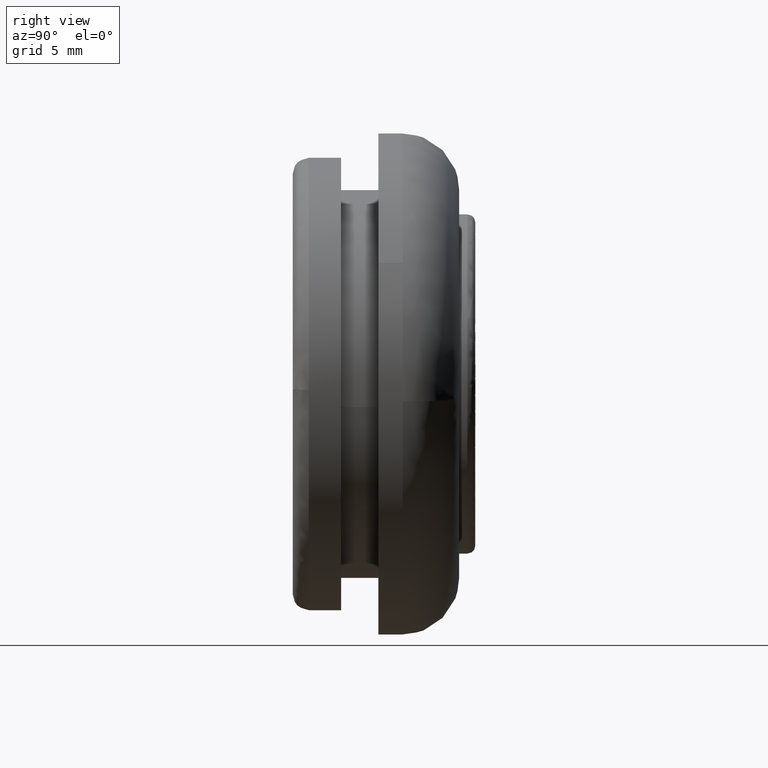
[diagram: clean part render]
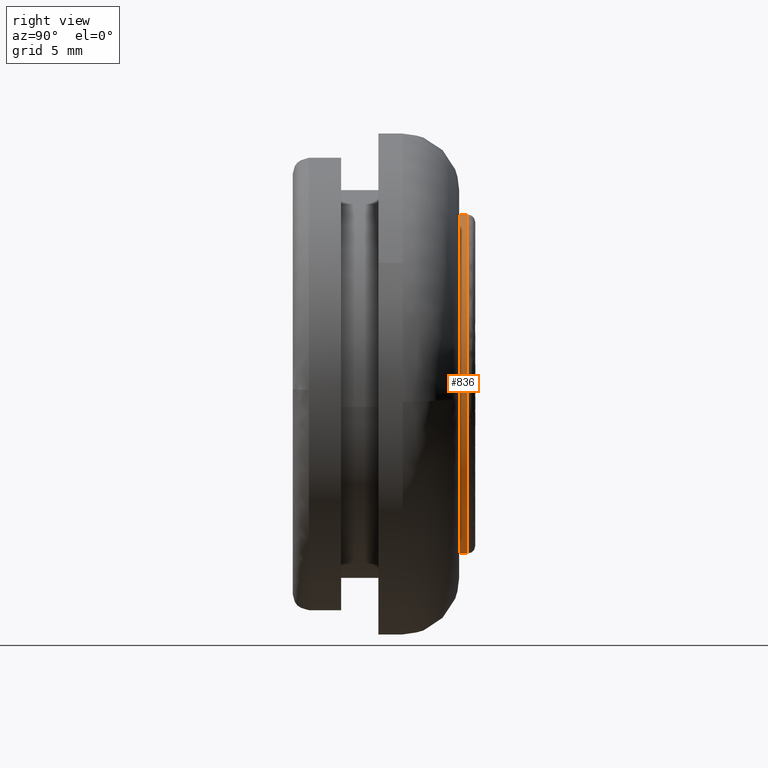
[diagram: same view with one face highlighted and labeled with its STEP entity id]
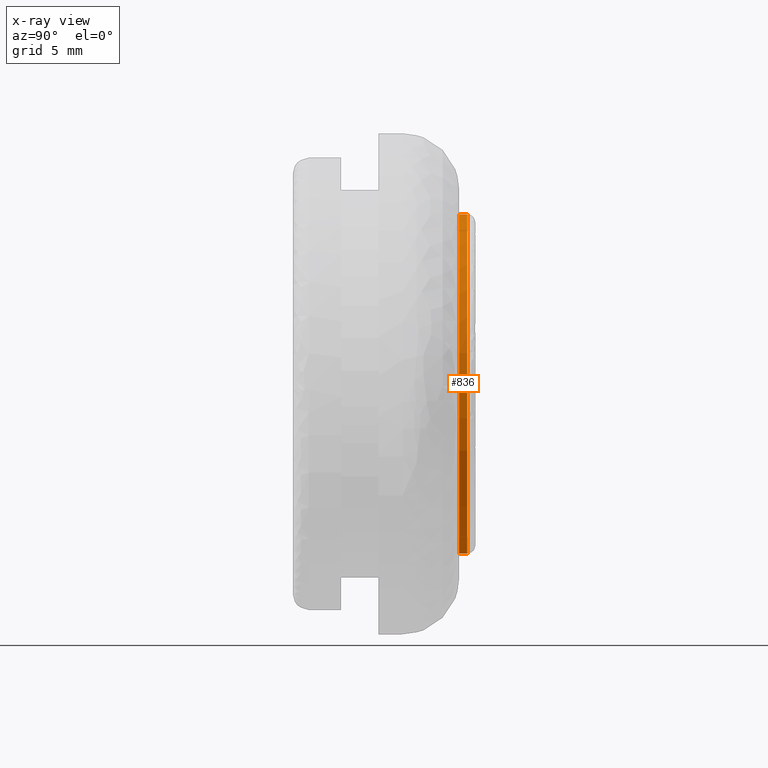
[diagram: x-ray of the same camera — body ghosted, the highlighted face saturated]
A machine part, right view. The second image highlights one B-rep face of the part: STEP entity #836.
The next image is the same camera in x-ray: the body ghosted, the highlighted face saturated — about 0% of this face is hidden behind the body in this view.
In plain terms, the highlighted face is a freeform B-spline surface patch.
Its self-contained STEP definition (entity closure, byte-faithful):
#666=CARTESIAN_POINT('',(-6.915020529185086,10.812500000185896,-7.901423357911457));
#667=CARTESIAN_POINT('',(-3.172341542878873,10.812500000185896,-11.176871445191013));
#668=CARTESIAN_POINT('',(1.732999861537117,10.812500000185899,-10.355998816140930));
#669=CARTESIAN_POINT('',(12.088998677678044,10.812500000185896,-8.622998954603810));
#670=CARTESIAN_POINT('',(10.355998816140930,10.812500000185899,1.732999861537116));
#671=CARTESIAN_POINT('',(8.622998954603810,10.812500000185896,12.088998677678044));
#672=CARTESIAN_POINT('',(-1.732999861537117,10.812500000185899,10.355998816140930));
#673=CARTESIAN_POINT('',(-12.088998677678044,10.812500000185896,8.622998954603810));
#674=CARTESIAN_POINT('',(-10.355998816140930,10.812500000185899,-1.732999861537117));
#675=CARTESIAN_POINT('',(-6.915020529185086,10.287187499995351,-7.901423357911457));
#676=CARTESIAN_POINT('',(-3.172341542878873,10.287187499995351,-11.176871445191013));
#677=CARTESIAN_POINT('',(1.732999861537117,10.287187499995349,-10.355998816140930));
#678=CARTESIAN_POINT('',(12.088998677678044,10.287187499995351,-8.622998954603810));
#679=CARTESIAN_POINT('',(10.355998816140930,10.287187499995349,1.732999861537116));
#680=CARTESIAN_POINT('',(8.622998954603810,10.287187499995351,12.088998677678044));
#681=CARTESIAN_POINT('',(-1.732999861537117,10.287187499995349,10.355998816140930));
#682=CARTESIAN_POINT('',(-12.088998677678044,10.287187499995351,8.622998954603810));
#683=CARTESIAN_POINT('',(-10.355998816140930,10.287187499995349,-1.732999861537117));
#691=(BOUNDED_SURFACE()B_SPLINE_SURFACE(2,1,((#666,#675),(#667,#676),(#668,#677),(#669,#678),(#670,#679),(#671,#680),(#672,#681),(#673,#682),(#674,#683)),.UNSPECIFIED.,.F.,.F.,.U.)B_SPLINE_SURFACE_WITH_KNOTS((3,2,2,2,3),(2,2),(0.0,9.742302987015194,27.139272606685179,44.536242226355178,61.933211846025173),(0.0,1.0),.UNSPECIFIED.)GEOMETRIC_REPRESENTATION_ITEM()RATIONAL_B_SPLINE_SURFACE(((0.855662221768731,0.855662221768731),(0.835979797464467,0.835979797464467),(1.0,1.0),(0.707106781186548,0.707106781186548),(1.0,1.0),(0.707106781186548,0.707106781186548),(1.0,1.0),(0.707106781186548,0.707106781186548),(1.0,1.0)))REPRESENTATION_ITEM('')SURFACE());
#692=CARTESIAN_POINT('',(-6.915019658882960,10.799999999999841,-7.901424119566094));
#693=VERTEX_POINT('',#692);
#694=CARTESIAN_POINT('',(0.0,10.800000000000001,-10.500000000000000));
#695=VERTEX_POINT('',#694);
#696=CARTESIAN_POINT('',(-6.915019658882960,10.799999999999841,-7.901424119566094));
#697=CARTESIAN_POINT('',(-3.945765607405795,10.800000000000001,-10.500000000000000));
#698=CARTESIAN_POINT('',(0.0,10.800000000000001,-10.500000000000000));
#706=(BOUNDED_CURVE()B_SPLINE_CURVE(2,(#696,#697,#698),.UNSPECIFIED.,.F.,.U.)B_SPLINE_CURVE_WITH_KNOTS((3,3),(0.885034282589348,1.0),.UNSPECIFIED.)CURVE()GEOMETRIC_REPRESENTATION_ITEM()RATIONAL_B_SPLINE_CURVE((0.854497086237319,0.865309283897585,1.0))REPRESENTATION_ITEM(''));
#707=EDGE_CURVE('',#693,#695,#706,.T.);
#708=ORIENTED_EDGE('',*,*,#707,.T.);
#709=CARTESIAN_POINT('',(9.662434397341063,10.800000000181161,4.109423501791973));
#710=VERTEX_POINT('',#709);
#711=CARTESIAN_POINT('',(0.0,10.800000000000001,-10.500000000000000));
#712=CARTESIAN_POINT('',(10.500000000000000,10.800000000000001,-10.500000000000000));
#713=CARTESIAN_POINT('',(10.500000000000000,10.800000000000001,-3.061516E-016));
#714=CARTESIAN_POINT('',(10.500000000000000,10.799999999999999,2.140066319299294));
#715=CARTESIAN_POINT('',(9.662434397341063,10.800000000181157,4.109423501791972));
#723=(BOUNDED_CURVE()B_SPLINE_CURVE(2,(#711,#712,#713,#714,#715),.UNSPECIFIED.,.F.,.U.)B_SPLINE_CURVE_WITH_KNOTS((3,2,3),(0.0,0.250000000000000,0.316449865337035),.UNSPECIFIED.)CURVE()GEOMETRIC_REPRESENTATION_ITEM()RATIONAL_B_SPLINE_CURVE((1.0,0.707106781186547,1.0,0.922149140206862,0.885683713610735))REPRESENTATION_ITEM(''));
#724=EDGE_CURVE('',#695,#710,#723,.T.);
#725=ORIENTED_EDGE('',*,*,#724,.T.);
#726=CARTESIAN_POINT('',(0.0,10.800000000000001,10.500000000000000));
#727=VERTEX_POINT('',#726);
#728=CARTESIAN_POINT('',(9.662434397341063,10.800000000181157,4.109423501791972));
#729=CARTESIAN_POINT('',(6.944528725560004,10.800000000000001,10.500000000000002));
#730=CARTESIAN_POINT('',(0.0,10.800000000000001,10.500000000000000));
#738=(BOUNDED_CURVE()B_SPLINE_CURVE(2,(#728,#729,#730),.UNSPECIFIED.,.F.,.U.)B_SPLINE_CURVE_WITH_KNOTS((3,3),(0.316449865337035,0.500000000000000),.UNSPECIFIED.)CURVE()GEOMETRIC_REPRESENTATION_ITEM()RATIONAL_B_SPLINE_CURVE((0.885683713610735,0.784957640979686,1.0))REPRESENTATION_ITEM(''));
#739=EDGE_CURVE('',#710,#727,#738,.T.);
#740=ORIENTED_EDGE('',*,*,#739,.T.);
#741=CARTESIAN_POINT('',(-4.655313924719978,10.800000000181360,9.411591377780288));
#742=VERTEX_POINT('',#741);
#743=CARTESIAN_POINT('',(0.0,10.800000000000001,10.500000000000000));
#744=CARTESIAN_POINT('',(-2.454891489191547,10.799999999999999,10.500000000000000));
#745=CARTESIAN_POINT('',(-4.655313924719980,10.800000000181361,9.411591377780288));
#753=(BOUNDED_CURVE()B_SPLINE_CURVE(2,(#743,#744,#745),.UNSPECIFIED.,.F.,.U.)B_SPLINE_CURVE_WITH_KNOTS((3,3),(0.500000000000000,0.575362209163508),.UNSPECIFIED.)CURVE()GEOMETRIC_REPRESENTATION_ITEM()RATIONAL_B_SPLINE_CURVE((1.0,0.911707679924830,0.876646594193951))REPRESENTATION_ITEM(''));
#754=EDGE_CURVE('',#727,#742,#753,.T.);
#755=ORIENTED_EDGE('',*,*,#754,.T.);
#756=CARTESIAN_POINT('',(-10.356001106936491,10.799999999999949,-1.732986172171446));
#757=VERTEX_POINT('',#756);
#758=CARTESIAN_POINT('',(-4.655313924719978,10.800000000181361,9.411591377780288));
#759=CARTESIAN_POINT('',(-10.499999999999998,10.800000000000001,6.520597986788738));
#760=CARTESIAN_POINT('',(-10.500000000000000,10.800000000000001,-3.061516E-016));
#761=CARTESIAN_POINT('',(-10.500000000000002,10.800000000000004,-0.872475730822447));
#762=CARTESIAN_POINT('',(-10.356001106936493,10.799999999999947,-1.732986172171447));
#770=(BOUNDED_CURVE()B_SPLINE_CURVE(2,(#758,#759,#760,#761,#762),.UNSPECIFIED.,.F.,.U.)B_SPLINE_CURVE_WITH_KNOTS((3,2,3),(0.575362209163507,0.750000000000000,0.778400298348064),.UNSPECIFIED.)CURVE()GEOMETRIC_REPRESENTATION_ITEM()RATIONAL_B_SPLINE_CURVE((0.876646594193951,0.795399101261717,1.0,0.966726980806293,0.941013670988923))REPRESENTATION_ITEM(''));
#771=EDGE_CURVE('',#742,#757,#770,.T.);
#772=ORIENTED_EDGE('',*,*,#771,.T.);
#773=CARTESIAN_POINT('',(-10.355999126547440,10.300000000000001,-1.732998006618915));
#774=VERTEX_POINT('',#773);
#775=CARTESIAN_POINT('',(-10.356001106936491,10.799999999999949,-1.732986172171446));
#776=CARTESIAN_POINT('',(-10.355999126547440,10.300000000000001,-1.732998006618915));
#777=QUASI_UNIFORM_CURVE('',1,(#775,#776),.UNSPECIFIED.,.F.,.U.);
#778=EDGE_CURVE('',#757,#774,#777,.T.);
#779=ORIENTED_EDGE('',*,*,#778,.T.);
#780=CARTESIAN_POINT('',(0.0,10.300000000000001,10.500000000000000));
#781=VERTEX_POINT('',#780);
#782=CARTESIAN_POINT('',(0.0,10.300000000000001,10.500000000000000));
#783=CARTESIAN_POINT('',(-10.500000000000000,10.300000000000001,10.500000000000000));
#784=CARTESIAN_POINT('',(-10.500000000000000,10.300000000000001,-3.061516E-016));
#785=CARTESIAN_POINT('',(-10.499999999999998,10.300000000000001,-0.872481771747707));
#786=CARTESIAN_POINT('',(-10.355999126547438,10.300000000000001,-1.732998006618915));
#794=(BOUNDED_CURVE()B_SPLINE_CURVE(2,(#782,#783,#784,#785,#786),.UNSPECIFIED.,.F.,.U.)B_SPLINE_CURVE_WITH_KNOTS((3,2,3),(0.500000000000000,0.750000000000000,0.778400488445714),.UNSPECIFIED.)CURVE()GEOMETRIC_REPRESENTATION_ITEM()RATIONAL_B_SPLINE_CURVE((1.0,0.707106781186547,1.0,0.966726758093042,0.941013326764724))REPRESENTATION_ITEM(''));
#795=EDGE_CURVE('',#781,#774,#794,.T.);
#796=ORIENTED_EDGE('',*,*,#795,.F.);
#797=CARTESIAN_POINT('',(0.0,10.300000000000001,-10.500000000000000));
#798=VERTEX_POINT('',#797);
#799=CARTESIAN_POINT('',(0.0,10.300000000000001,-10.500000000000000));
#800=CARTESIAN_POINT('',(10.500000000000000,10.300000000000001,-10.500000000000000));
#801=CARTESIAN_POINT('',(10.500000000000000,10.300000000000001,-3.061516E-016));
#802=CARTESIAN_POINT('',(10.500000000000000,10.300000000000001,10.500000000000000));
#803=CARTESIAN_POINT('',(0.0,10.300000000000001,10.500000000000000));
#811=(BOUNDED_CURVE()B_SPLINE_CURVE(2,(#799,#800,#801,#802,#803),.UNSPECIFIED.,.F.,.U.)B_SPLINE_CURVE_WITH_KNOTS((3,2,3),(0.0,0.250000000000000,0.500000000000000),.UNSPECIFIED.)CURVE()GEOMETRIC_REPRESENTATION_ITEM()RATIONAL_B_SPLINE_CURVE((1.0,0.707106781186547,1.0,0.707106781186547,1.0))REPRESENTATION_ITEM(''));
#812=EDGE_CURVE('',#798,#781,#811,.T.);
#813=ORIENTED_EDGE('',*,*,#812,.F.);
#814=CARTESIAN_POINT('',(-6.915019669019442,10.300000000000001,-7.901424110695041));
#815=VERTEX_POINT('',#814);
#816=CARTESIAN_POINT('',(-6.915019669019442,10.300000000000001,-7.901424110695041));
#817=CARTESIAN_POINT('',(-3.945765615091948,10.299999999999999,-10.500000000000002));
#818=CARTESIAN_POINT('',(0.0,10.300000000000001,-10.500000000000000));
#826=(BOUNDED_CURVE()B_SPLINE_CURVE(2,(#816,#817,#818),.UNSPECIFIED.,.F.,.U.)B_SPLINE_CURVE_WITH_KNOTS((3,3),(0.885034282395564,1.0),.UNSPECIFIED.)CURVE()GEOMETRIC_REPRESENTATION_ITEM()RATIONAL_B_SPLINE_CURVE((0.854497086200870,0.865309283670554,1.0))REPRESENTATION_ITEM(''));
#827=EDGE_CURVE('',#815,#798,#826,.T.);
#828=ORIENTED_EDGE('',*,*,#827,.F.);
#829=CARTESIAN_POINT('',(-6.915019658882960,10.799999999999841,-7.901424119566094));
#830=CARTESIAN_POINT('',(-6.915019669019442,10.300000000000001,-7.901424110695041));
#831=QUASI_UNIFORM_CURVE('',1,(#829,#830),.UNSPECIFIED.,.F.,.U.);
#832=EDGE_CURVE('',#693,#815,#831,.T.);
#833=ORIENTED_EDGE('',*,*,#832,.F.);
#834=EDGE_LOOP('',(#708,#725,#740,#755,#772,#779,#796,#813,#828,#833));
#835=FACE_OUTER_BOUND('',#834,.T.);
#836=ADVANCED_FACE('',(#835),#691,.T.);